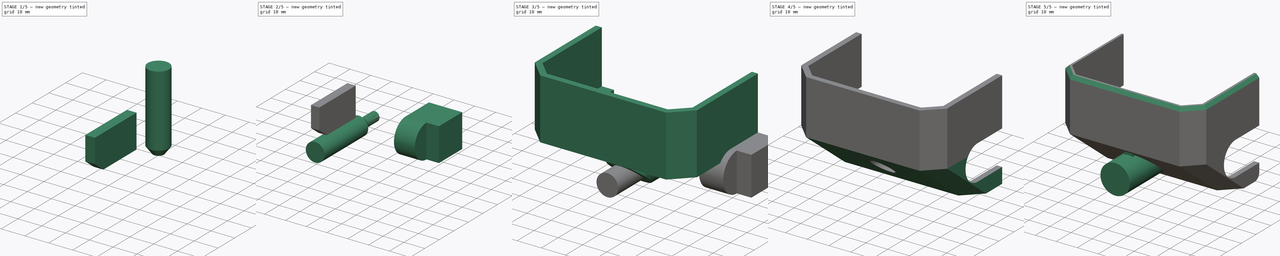
[diagram: build sequence overview — one tinted view per stage of 5, left to right]
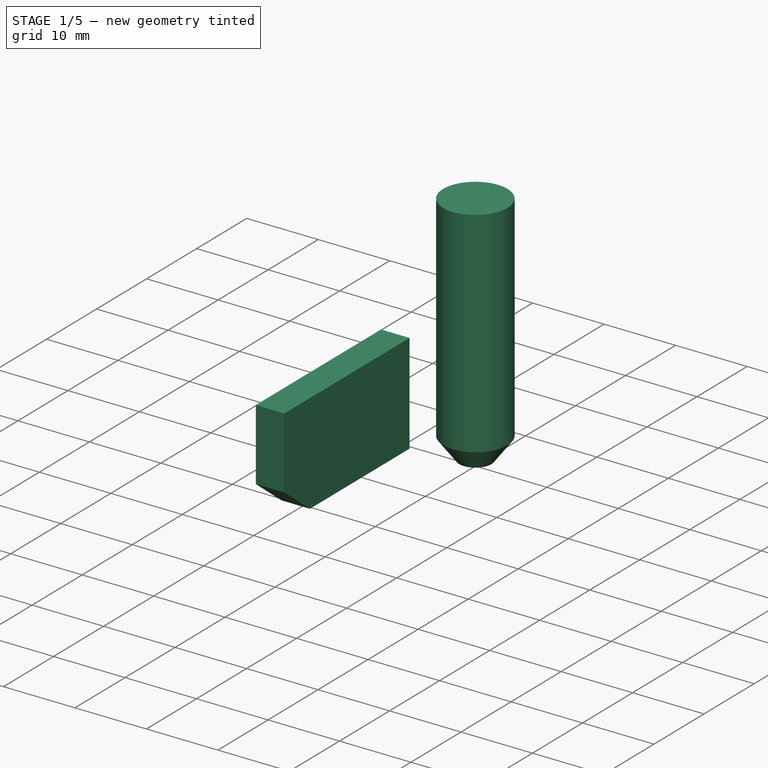
[diagram: stage 1 of 5 — iso view after this stage's code; geometry added in this stage tinted green]
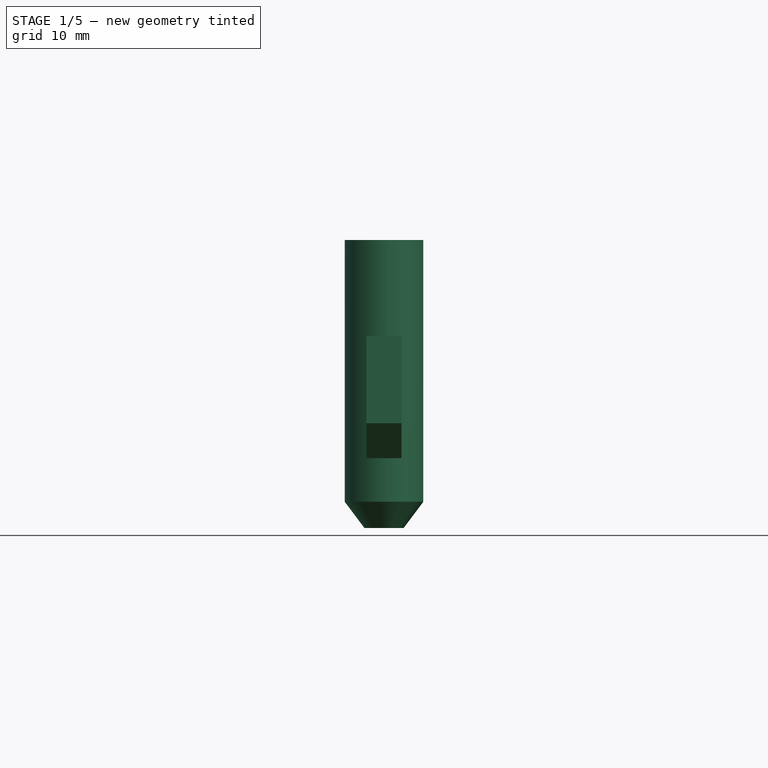
[diagram: stage 1 of 5 — front view after this stage's code; geometry added in this stage tinted green]
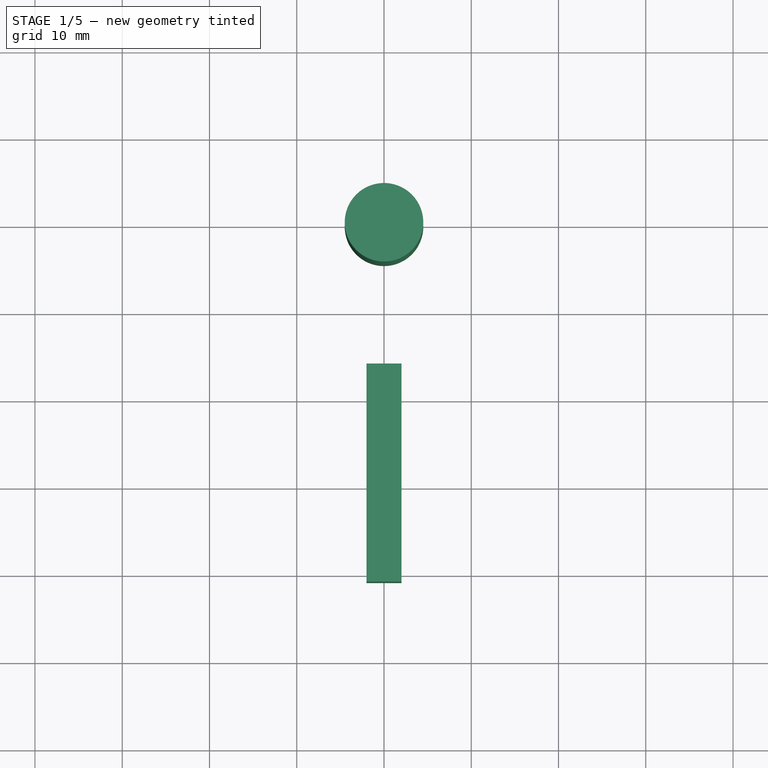
[diagram: stage 1 of 5 — top view after this stage's code; geometry added in this stage tinted green]
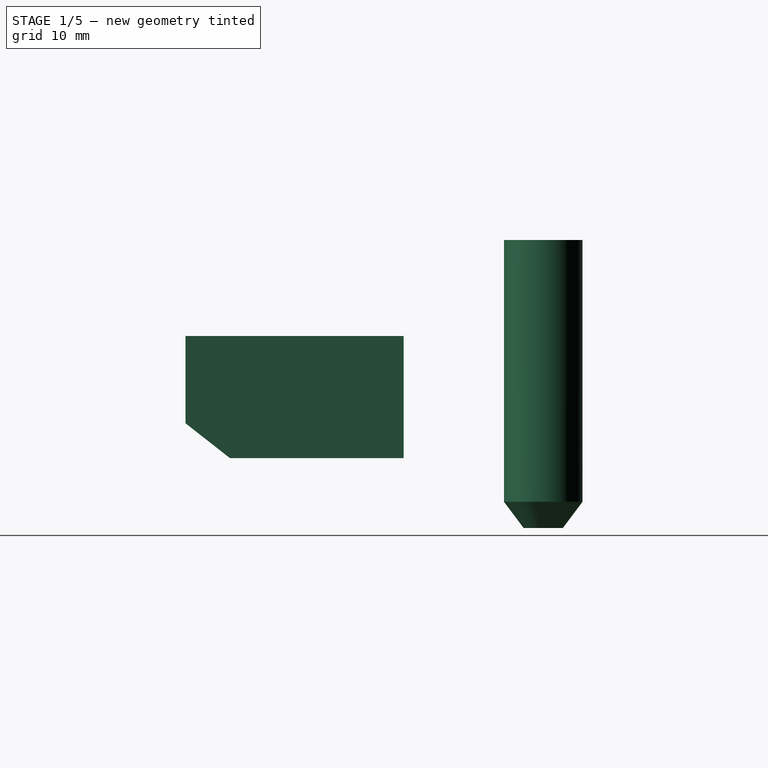
[diagram: stage 1 of 5 — right view after this stage's code; geometry added in this stage tinted green]
FCSTD DOCUMENT  (FreeCAD 0.19R)
Label: power_outlet_cover
License: All rights reserved
LicenseURL: http://en.wikipedia.org/wiki/All_rights_reserved
objects: Part::FeaturePython×8, Part::MultiFuse×6, Part::Cylinder×4, Sketcher::SketchObject×2, App::DocumentObjectGroup×2, Part::Box×2, Part::Cut×2, PartDesign::Body×1, Part::Loft×1, Part::Extrusion×1, Part::Mirroring×1, Part::Cone×1, Part::Fillet×1, Part::Chamfer×1
note: 31 computed .brp shape members not serialized (recipe doc carries the construction recipe); baked Part::Feature solids carry a one-line shape summary decoded from their .brp

FEATURE [Part::Loft] Loft
  Closed = false
  MaxDegree = 5
  Ruled = false
  Sections = -> [Sketch,Sketch001]
  Solid = true
FEATURE [Part::Cone] Cone
  Angle = 360
  AttacherType = Attacher::AttachEngine3D
  Height = 3
  Placement = pos=(0,0,8) rot=(0,0,1;0rad)
  Radius1 = 2.25
  Radius2 = 4.5
FEATURE [Part::Cylinder] Cylinder003
  Angle = 360
  AttacherType = Attacher::AttachEngine3D
  Height = 30
  Placement = pos=(0,0,11) rot=(0,0,1;0rad)
  Radius = 4.5
FEATURE [Part::Box] Box001  label="Cube001"
  AttacherType = Attacher::AttachEngine3D
  Height = 14
  Length = 4
  Placement = pos=(-2,-41,16) rot=(0,0,1;0rad)
  Width = 25
FEATURE [Part::FeaturePython] Slice001  # WARN: FeaturePython — macro-defined, semantics opaque (R4)
  Base = -> Box001
  Mode = 1
  Tolerance = 0
  Tools = -> [Loft]
FEATURE [Part::FeaturePython] Slice001_child1  label="Slice001.1"  # WARN: FeaturePython — macro-defined, semantics opaque (R4)
  Base = -> Slice001
  FilterType = 1
  Invert = false
  OverrideMaxVal = 0
  WindowFrom = 80
  WindowTo = 100
  items = 1
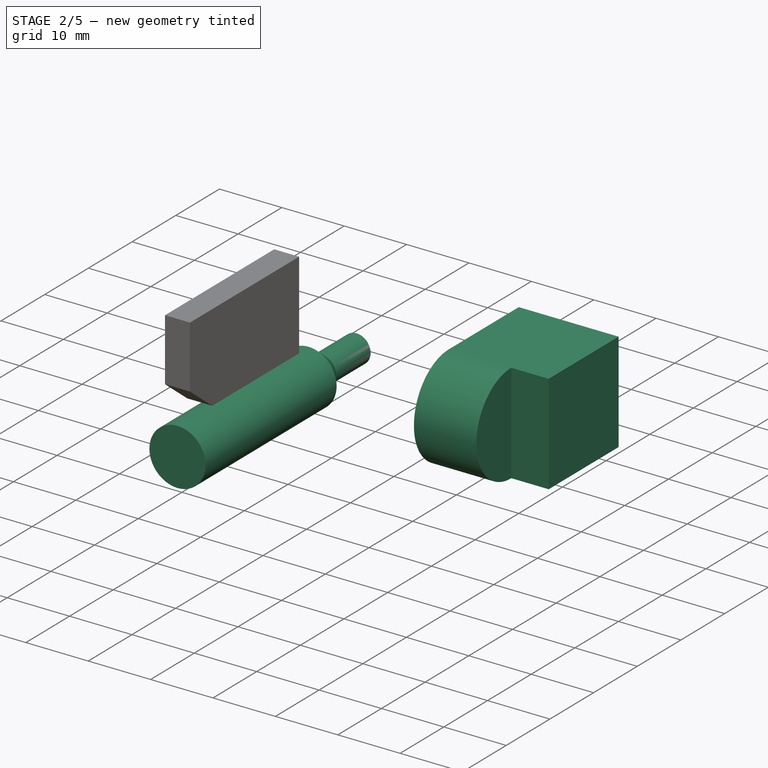
[diagram: stage 2 of 5 — iso view after this stage's code; geometry added in this stage tinted green]
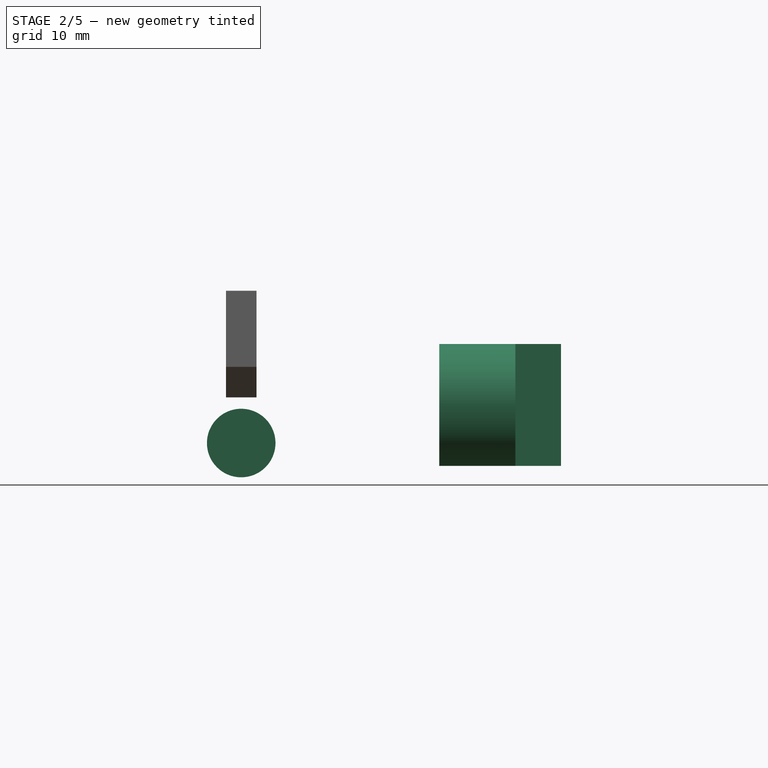
[diagram: stage 2 of 5 — front view after this stage's code; geometry added in this stage tinted green]
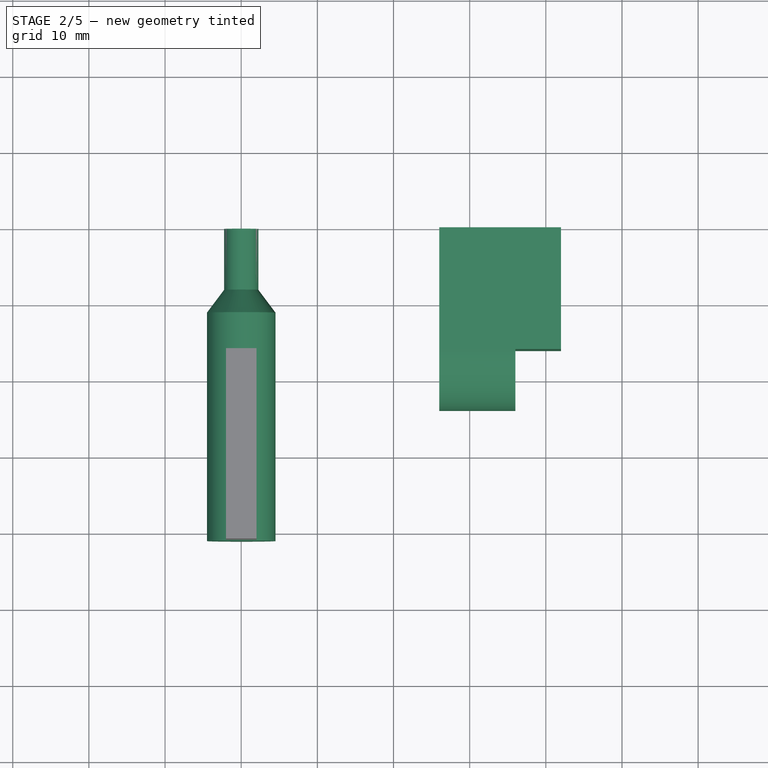
[diagram: stage 2 of 5 — top view after this stage's code; geometry added in this stage tinted green]
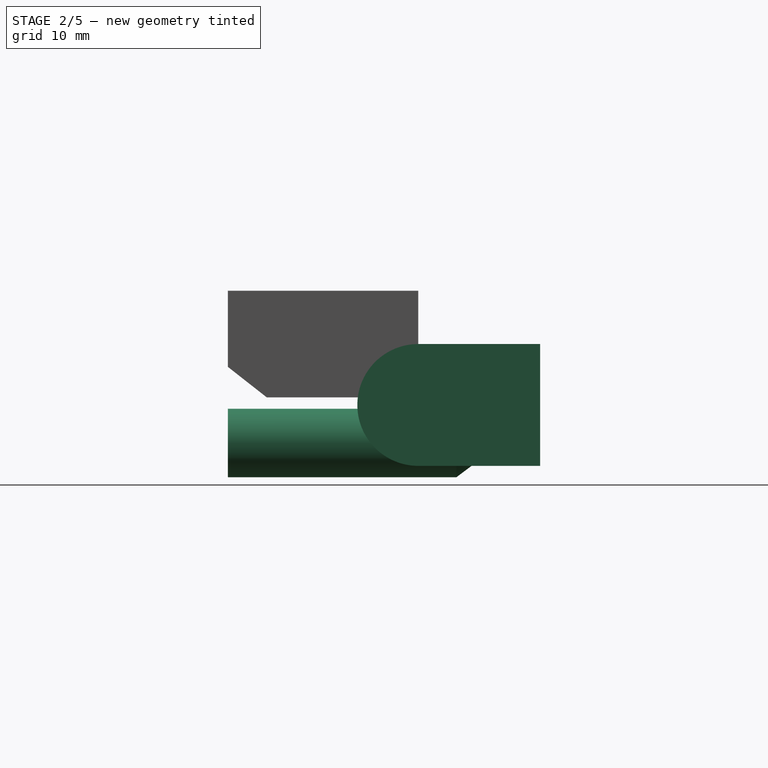
[diagram: stage 2 of 5 — right view after this stage's code; geometry added in this stage tinted green]
FEATURE [Sketcher::SketchObject] Sketch001  label="lower"
  MapMode = 5
  Support = -> [XY_Plane]
  expr: Constraints[29] = Sketch.Constraints[30]
  expr: Constraints[27] = Sketch.Constraints[28]
  expr: Constraints[22] = Sketch.Constraints[22]
  expr: Constraints[25] = Sketch.Constraints[26]
  expr: Constraints[21] = Sketch.Constraints[21]
  expr: Constraints[17] = Sketch.Constraints[17]
  sketch-geometry (12):
    g0: LineSegment StartX=-33.5 StartY=0 StartZ=0 EndX=-31 EndY=0 EndZ=0
    g1: LineSegment StartX=-31 StartY=0 StartZ=0 EndX=-31 EndY=-9.5 EndZ=0
    g2: LineSegment StartX=-31 StartY=-9.5 StartZ=0 EndX=-25 EndY=-15.5 EndZ=0
    g3: LineSegment StartX=-25 StartY=-15.5 StartZ=0 EndX=25 EndY=-15.5 EndZ=0
    g4: LineSegment StartX=25 StartY=-15.5 StartZ=0 EndX=31 EndY=-9.5 EndZ=0
    g5: LineSegment StartX=31 StartY=-9.5 StartZ=0 EndX=31 EndY=0 EndZ=0
    g6: LineSegment StartX=31 StartY=0 StartZ=0 EndX=33.5 EndY=0 EndZ=0
    g7: LineSegment StartX=33.5 StartY=0 StartZ=0 EndX=33.5 EndY=-10.5355 EndZ=0
    g8: LineSegment StartX=33.5 StartY=-10.5355 StartZ=0 EndX=26.0355 EndY=-18 EndZ=0
    g9: LineSegment StartX=26.0355 StartY=-18 StartZ=0 EndX=-26.0355 EndY=-18 EndZ=0
    g10: LineSegment StartX=-26.0355 StartY=-18 StartZ=0 EndX=-33.5 EndY=-10.5355 EndZ=0
    g11: LineSegment StartX=-33.5 StartY=-10.5355 StartZ=0 EndX=-33.5 EndY=0 EndZ=0
  constraints (31):
    c: Horizontal(g0)
    c: Coincident(g0,g1)
    c: Vertical(g1)
    c: Coincident(g1,g2)
    c: Coincident(g2,g3)
    c: Coincident(g3,g4)
    c: Coincident(g4,g5)
    c: Coincident(g5,g6)
    c: Coincident(g6,g7)
    c: Vertical(g7)
    c: Coincident(g7,g8)
    c: Coincident(g8,g9)
    c: Horizontal(g9)
    c: Coincident(g9,g10)
    c: Coincident(g10,g11)
    c: Coincident(g11,g0)
    c: Parallel(g4,g8)
    c: Angle(g5,g4) = 2.35619
    c: Symmetric(g5,g0,g-2)
    c: Horizontal(g0,g-1)
    c: Symmetric(g0,g6,g-2)
    c: DistanceX(g0,g0) = 2.5
    c: DistanceX(g0,g-1) = 31
    c: Symmetric(g4,g1,g-2)
    c: Symmetric(g2,g3,g-2)
    c: DistanceY(g9,g2) = 2.5
    c: Parallel(g10,g2)
    c: Distance(g1,g10) = 2.5
    c: Symmetric(g7,g10,g-2)
    c: DistanceY(g2,g1) = 6
    c: DistanceY(g9,g0) = 18
FEATURE [PartDesign::Body] Body
  Group = -> [Sketch,Sketch001]
  Origin = -> Origin
FEATURE [Part::Cylinder] Cylinder001
  Angle = 360
  AttacherType = Attacher::AttachEngine3D
  Height = 10
  Placement = pos=(26,-16,15) rot=(0,1,0;1.5708rad)
  Radius = 8
FEATURE [Part::Box] Box  label="Cube"
  AttacherType = Attacher::AttachEngine3D
  Height = 16
  Length = 16
  Placement = pos=(26,-16,7) rot=(0,0,1;0rad)
  Width = 16
FEATURE [Part::MultiFuse] Fusion002
  Shapes = -> [Box,Cylinder001]
FEATURE [Part::Cylinder] Cylinder002
  Angle = 360
  AttacherType = Attacher::AttachEngine3D
  Height = 8
  Radius = 2.25
FEATURE [Part::MultiFuse] Fusion004
  Placement = pos=(0,2e-15,10) rot=(1,0,0;1.5708rad)
  Shapes = -> [Cylinder002,Cone,Cylinder003]
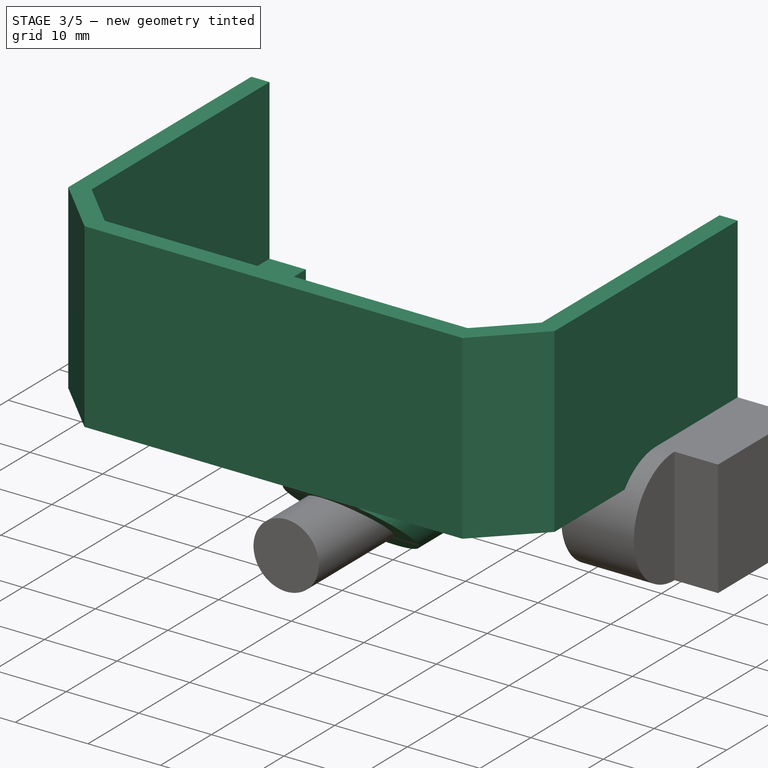
[diagram: stage 3 of 5 — iso view after this stage's code; geometry added in this stage tinted green]
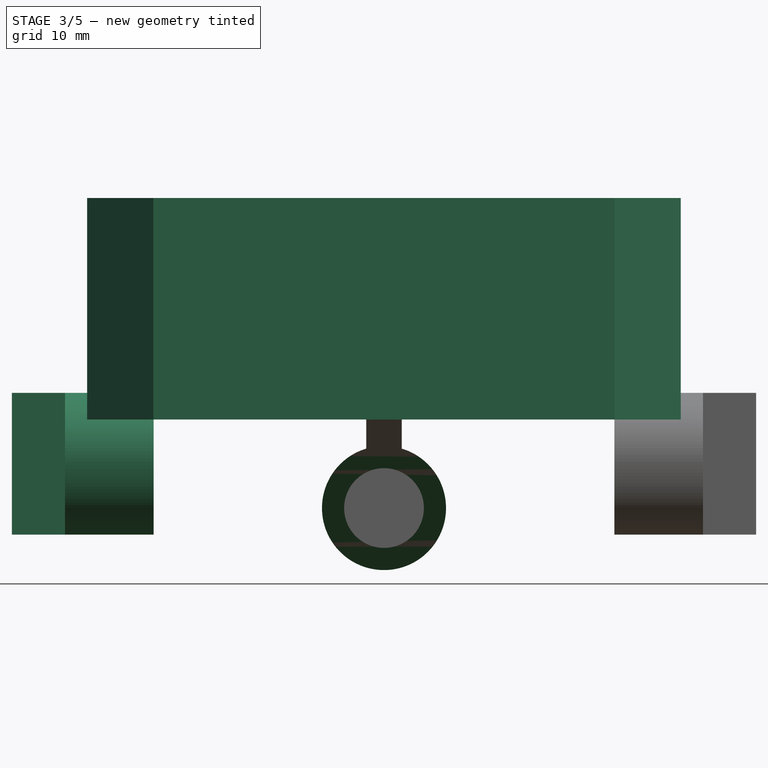
[diagram: stage 3 of 5 — front view after this stage's code; geometry added in this stage tinted green]
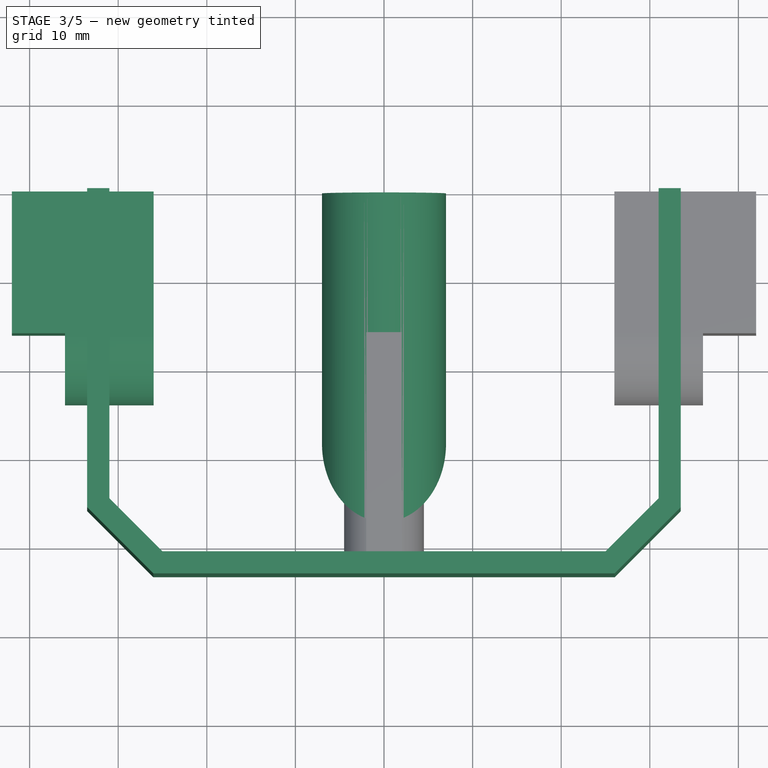
[diagram: stage 3 of 5 — top view after this stage's code; geometry added in this stage tinted green]
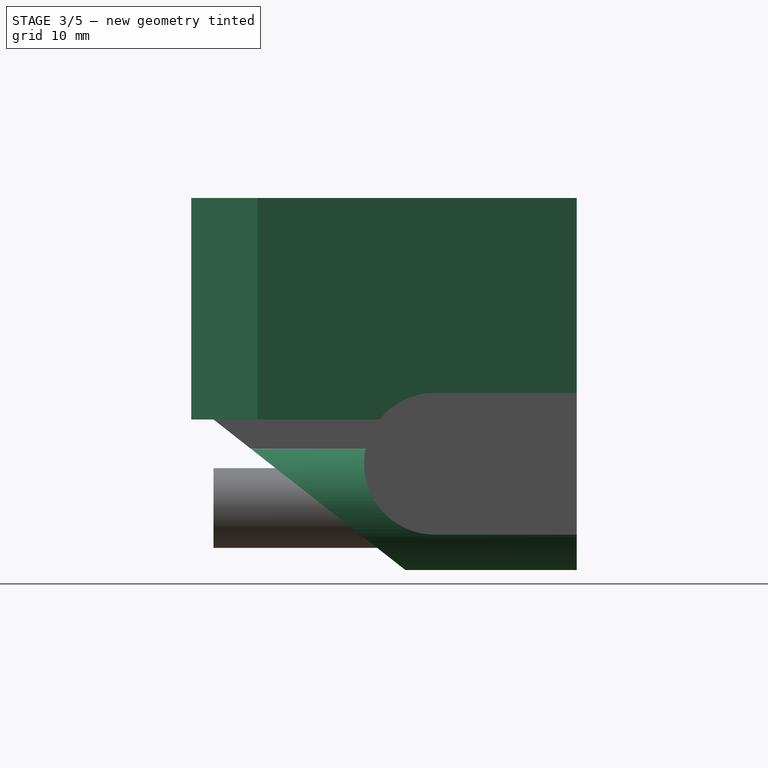
[diagram: stage 3 of 5 — right view after this stage's code; geometry added in this stage tinted green]
FEATURE [Sketcher::SketchObject] Sketch  label="upper"
  AttachmentOffset = pos=(0,0,20) rot=(0,0,1;0rad)
  MapMode = 5
  Placement = pos=(0,0,20) rot=(0,0,1;0rad)
  Support = -> [XY_Plane]
  sketch-geometry (12):
    g0: LineSegment StartX=-33.5 StartY=0 StartZ=0 EndX=-31 EndY=0 EndZ=0
    g1: LineSegment StartX=-31 StartY=0 StartZ=0 EndX=-31 EndY=-35 EndZ=0
    g2: LineSegment StartX=-31 StartY=-35 StartZ=0 EndX=-25 EndY=-41 EndZ=0
    g3: LineSegment StartX=-25 StartY=-41 StartZ=0 EndX=25 EndY=-41 EndZ=0
    g4: LineSegment StartX=25 StartY=-41 StartZ=0 EndX=31 EndY=-35 EndZ=0
    g5: LineSegment StartX=31 StartY=-35 StartZ=0 EndX=31 EndY=0 EndZ=0
    g6: LineSegment StartX=31 StartY=0 StartZ=0 EndX=33.5 EndY=0 EndZ=0
    g7: LineSegment StartX=33.5 StartY=0 StartZ=0 EndX=33.5 EndY=-36.0355 EndZ=0
    g8: LineSegment StartX=33.5 StartY=-36.0355 StartZ=0 EndX=26.0355 EndY=-43.5 EndZ=0
    g9: LineSegment StartX=26.0355 StartY=-43.5 StartZ=0 EndX=-26.0355 EndY=-43.5 EndZ=0
    g10: LineSegment StartX=-26.0355 StartY=-43.5 StartZ=0 EndX=-33.5 EndY=-36.0355 EndZ=0
    g11: LineSegment StartX=-33.5 StartY=-36.0355 StartZ=0 EndX=-33.5 EndY=0 EndZ=0
  constraints (31):
    c: Horizontal(g0)
    c: Coincident(g0,g1)
    c: Vertical(g1)
    c: Coincident(g1,g2)
    c: Coincident(g2,g3)
    c: Coincident(g3,g4)
    c: Coincident(g4,g5)
    c: Coincident(g5,g6)
    c: Coincident(g6,g7)
    c: Vertical(g7)
    c: Coincident(g7,g8)
    c: Coincident(g8,g9)
    c: Horizontal(g9)
    c: Coincident(g9,g10)
    c: Coincident(g10,g11)
    c: Coincident(g11,g0)
    c: Parallel(g4,g8)
    c: Angle(g5,g4) = 2.35619
    c: Symmetric(g5,g0,g-2)
    c: Horizontal(g0,g-1)
    c: Symmetric(g0,g6,g-2)
    c: DistanceX(g0,g0) = 2.5
    c: DistanceX(g0,g-1) = 31
    c: DistanceY(g1,g-1) = 35
    c: Symmetric(g4,g1,g-2)
    c: Symmetric(g2,g3,g-2)
    c: DistanceY(g9,g2) = 2.5
    c: Parallel(g10,g2)
    c: Distance(g1,g10) = 2.5
    c: Symmetric(g7,g10,g-2)
    c: DistanceY(g2,g1) = 6
FEATURE [Part::Cylinder] Cylinder
  Angle = 360
  AttacherType = Attacher::AttachEngine3D
  Height = 50
  Placement = pos=(0,0,10) rot=(1,0,0;1.5708rad)
  Radius = 7
FEATURE [Part::FeaturePython] Slice  # WARN: FeaturePython — macro-defined, semantics opaque (R4)
  Base = -> Cylinder
  Mode = 1
  Tolerance = 0
  Tools = -> [Loft]
FEATURE [App::DocumentObjectGroup] GrExplode_Slice  label="Exploded Slice"
  Group = -> [Slice_child0,Slice_child1]
FEATURE [Part::FeaturePython] Slice_child2  label="Slice.2"  # WARN: FeaturePython — macro-defined, semantics opaque (R4)
  Base = -> Slice
  FilterType = 1
  Invert = false
  OverrideMaxVal = 0
  WindowFrom = 80
  WindowTo = 100
  items = 2
FEATURE [Part::Extrusion] Extrude
  Base = -> Sketch
  Dir = (0,0,1)
  DirMode = 2
  FaceMakerClass = Part::FaceMakerBullseye
  LengthFwd = 25
  LengthRev = 0
  Solid = true
  Symmetric = false
FEATURE [Part::Mirroring] Part__Mirroring  label="Fusion002 (Mirror #1)"
  Base = (0,0,0)
  Normal = (1,0,0)
  Source = -> Fusion002
FEATURE [Part::MultiFuse] Fusion003
  Shapes = -> [Part__Mirroring,Fusion002]
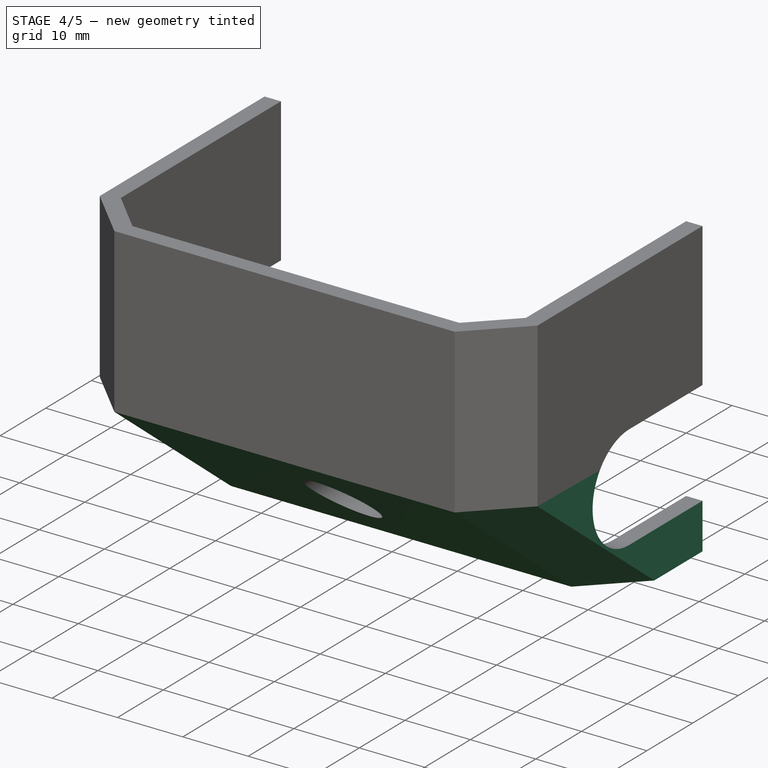
[diagram: stage 4 of 5 — iso view after this stage's code; geometry added in this stage tinted green]
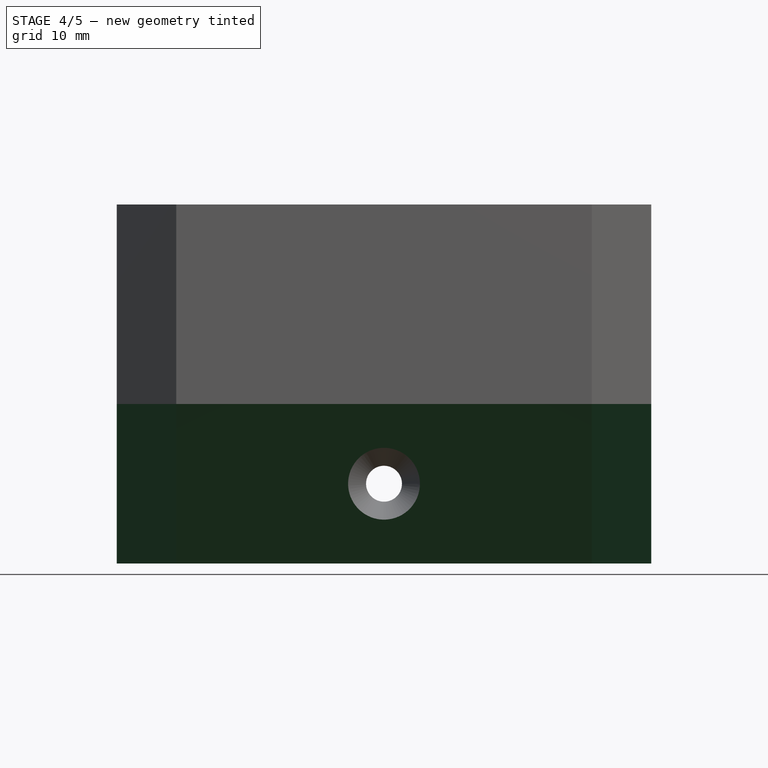
[diagram: stage 4 of 5 — front view after this stage's code; geometry added in this stage tinted green]
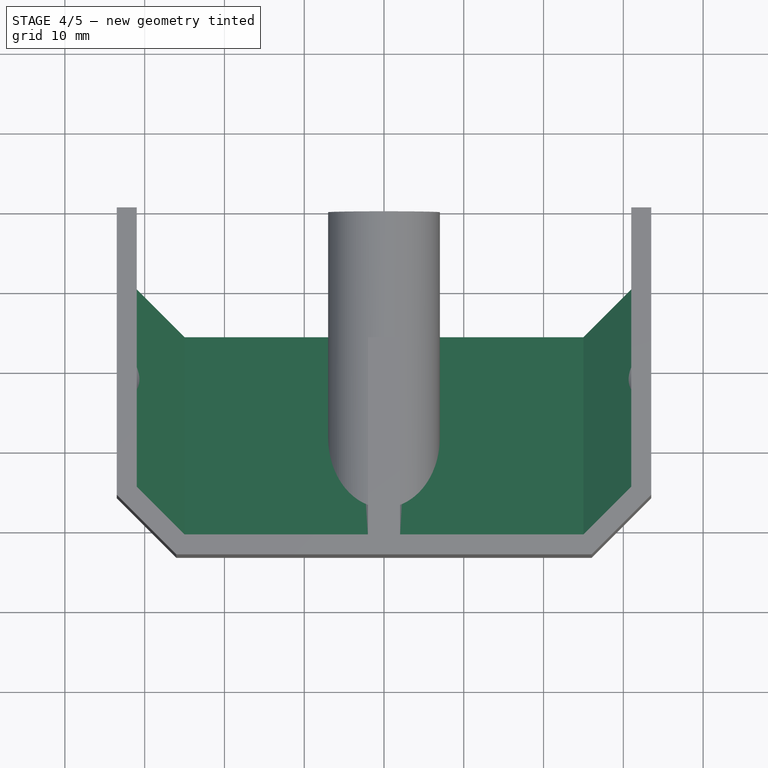
[diagram: stage 4 of 5 — top view after this stage's code; geometry added in this stage tinted green]
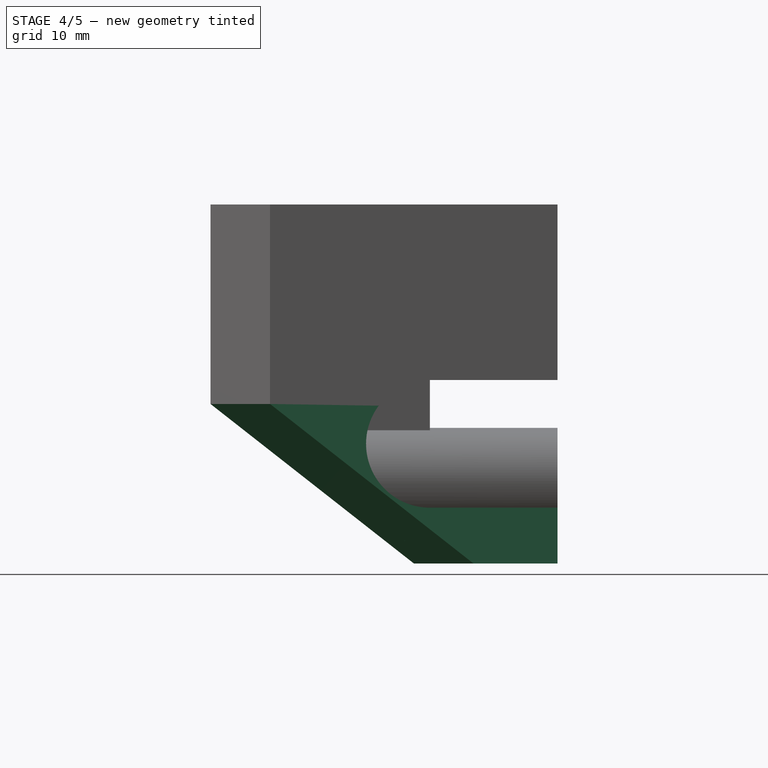
[diagram: stage 4 of 5 — right view after this stage's code; geometry added in this stage tinted green]
FEATURE [Part::MultiFuse] Fusion
  Shapes = -> [Slice_child2,Loft]
FEATURE [Part::MultiFuse] Fusion001
  Shapes = -> [Extrude,Fusion]
FEATURE [Part::Cut] Cut
  Base = -> Fusion001
  Tool = -> Fusion003
FEATURE [Part::Cut] Cut001
  Base = -> Cut
  Tool = -> Fusion004
FEATURE [Part::MultiFuse] Fusion005
  Shapes = -> [Cut001,Slice001_child1]
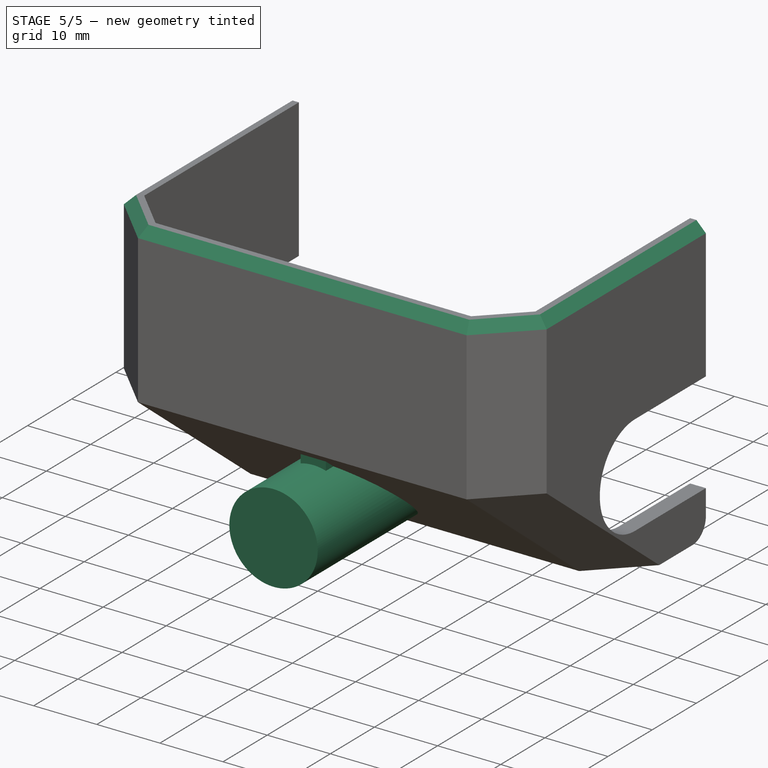
[diagram: stage 5 of 5 — iso view after this stage's code; geometry added in this stage tinted green]
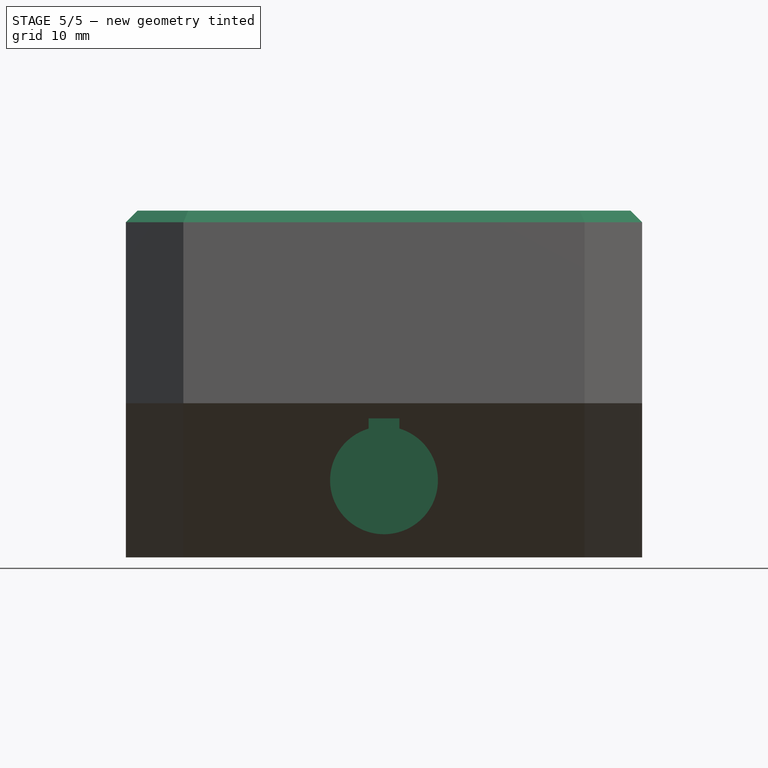
[diagram: stage 5 of 5 — front view after this stage's code; geometry added in this stage tinted green]
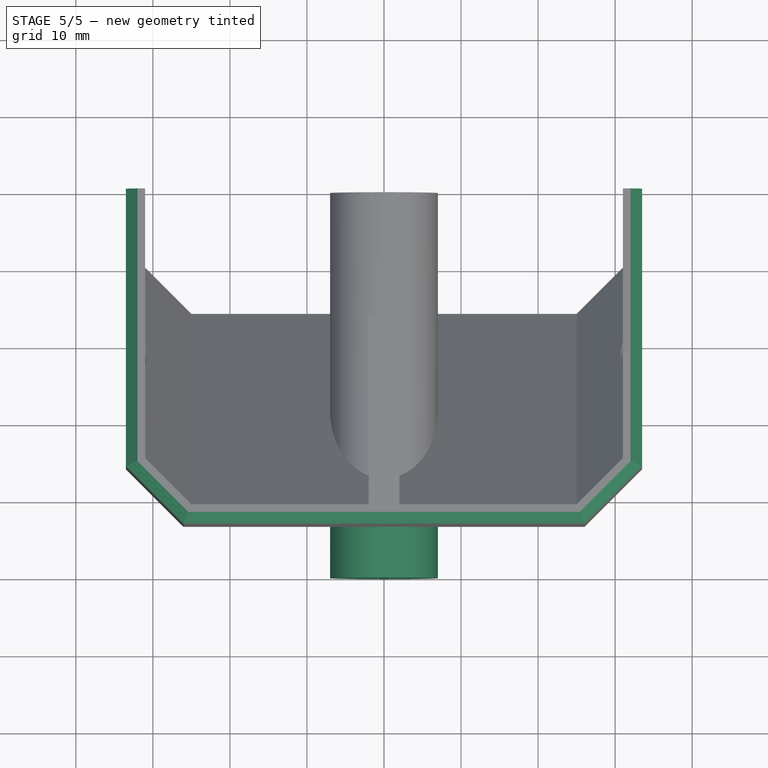
[diagram: stage 5 of 5 — top view after this stage's code; geometry added in this stage tinted green]
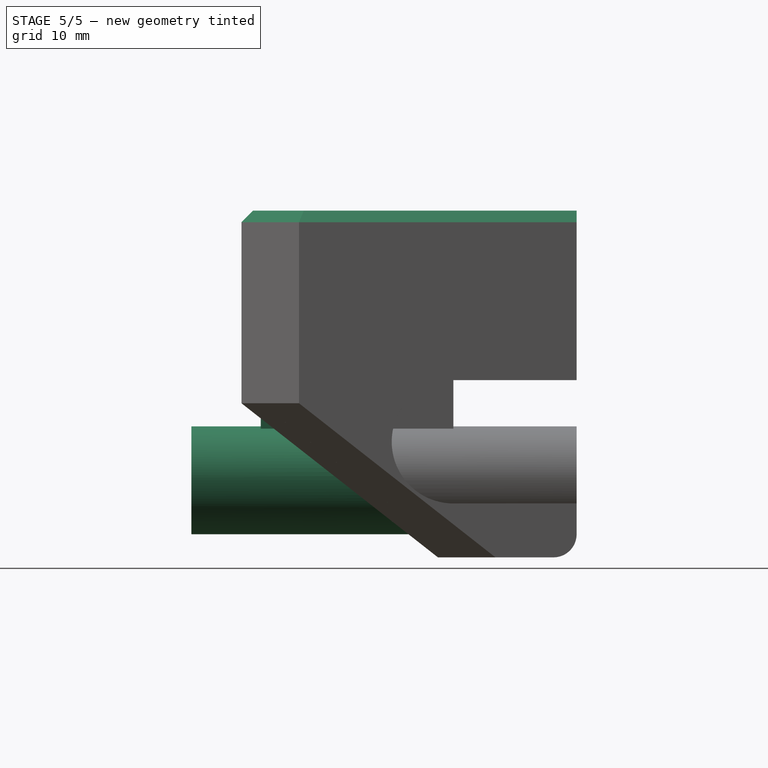
[diagram: stage 5 of 5 — right view after this stage's code; geometry added in this stage tinted green]
FEATURE [Part::FeaturePython] Slice_child0  label="Slice.0"  # WARN: FeaturePython — macro-defined, semantics opaque (R4)
  Base = -> Slice
  FilterType = 1
  Invert = false
  OverrideMaxVal = 0
  WindowFrom = 80
  WindowTo = 100
  items = 0
FEATURE [Part::FeaturePython] Slice_child1  label="Slice.1"  # WARN: FeaturePython — macro-defined, semantics opaque (R4)
  Base = -> Slice
  FilterType = 1
  Invert = false
  OverrideMaxVal = 0
  WindowFrom = 80
  WindowTo = 100
  items = 1
FEATURE [Part::FeaturePython] Slice001_child0  label="Slice001.0"  # WARN: FeaturePython — macro-defined, semantics opaque (R4)
  Base = -> Slice001
  FilterType = 1
  Invert = false
  OverrideMaxVal = 0
  WindowFrom = 80
  WindowTo = 100
  items = 0
FEATURE [Part::FeaturePython] Slice001_child2  label="Slice001.2"  # WARN: FeaturePython — macro-defined, semantics opaque (R4)
  Base = -> Slice001
  FilterType = 1
  Invert = false
  OverrideMaxVal = 0
  WindowFrom = 80
  WindowTo = 100
  items = 2
FEATURE [App::DocumentObjectGroup] GrExplode_Slice001  label="Exploded Slice001"
  Group = -> [Slice001_child0,Slice001_child2,Fusion005]
FEATURE [Part::Fillet] Fillet
  Base = -> Fusion005
  Edges = 2 edges r=3: [Edge46,Edge50]
FEATURE [Part::Chamfer] Chamfer  label="Cover"
  Base = -> Fillet
  Edges = 5 edges r=1.5: [Edge69,Edge86,Edge96,Edge101,Edge103]
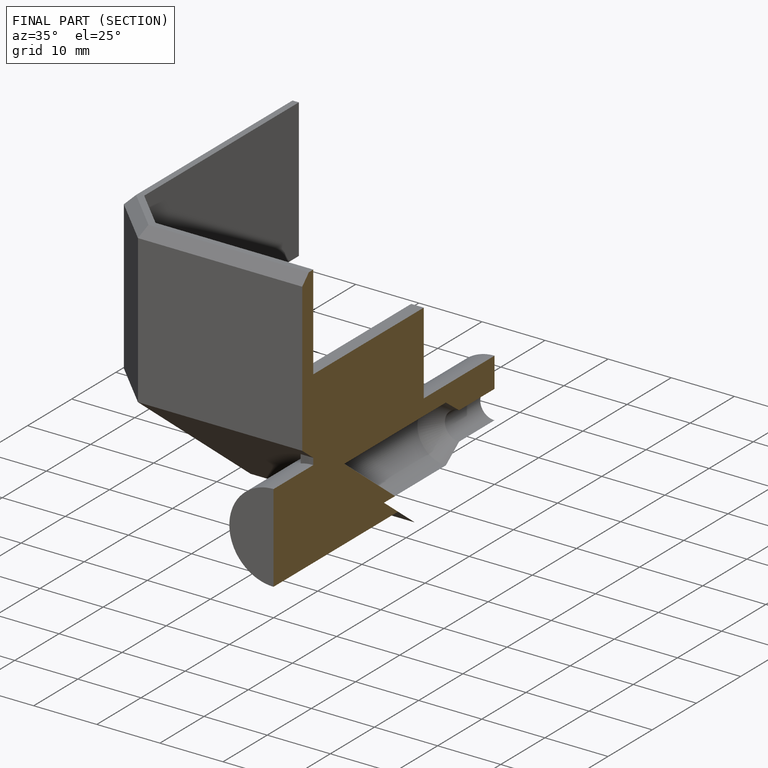
[diagram: finished part — half-section view (interior)]
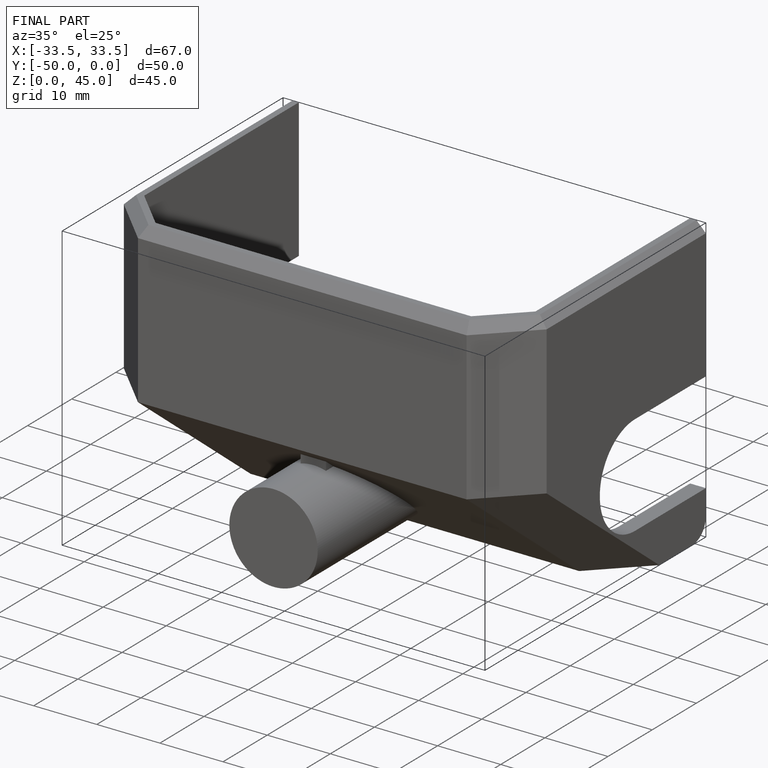
[diagram: finished part — iso view with bounding-box wireframe]
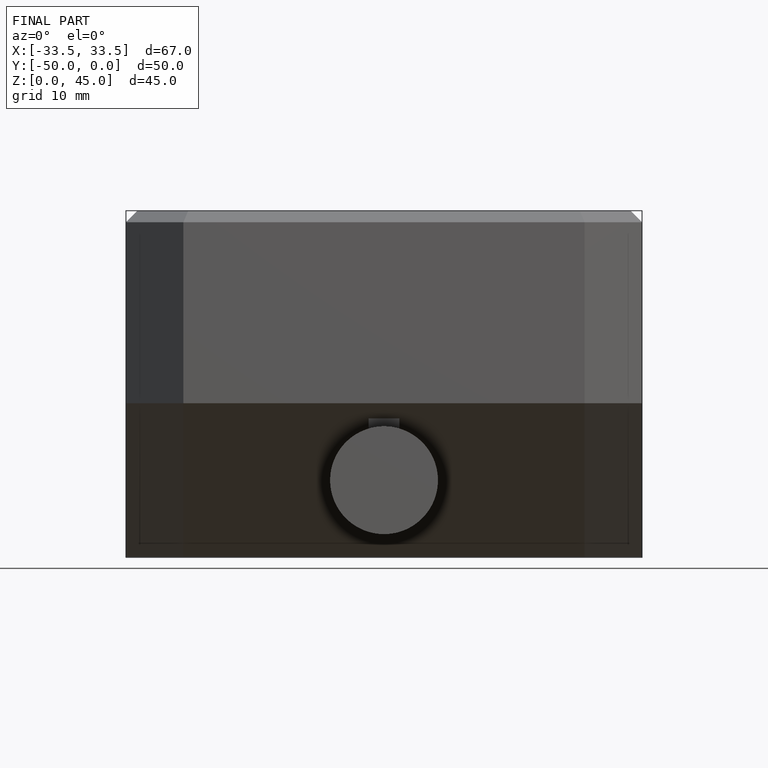
[diagram: finished part — front view with bounding-box wireframe]
